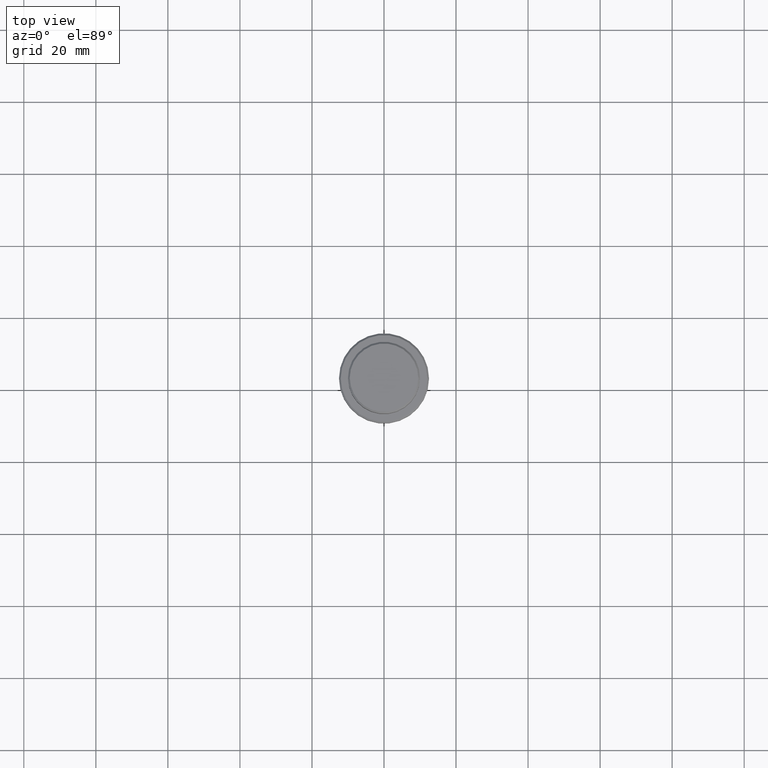
[diagram: clean part render]
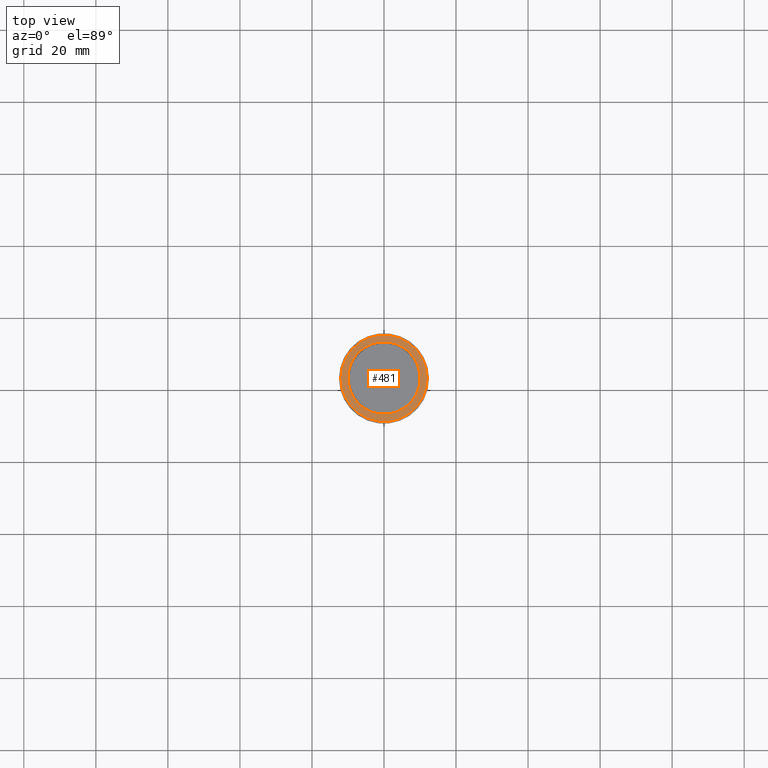
[diagram: same view with one face highlighted and labeled with its STEP entity id]
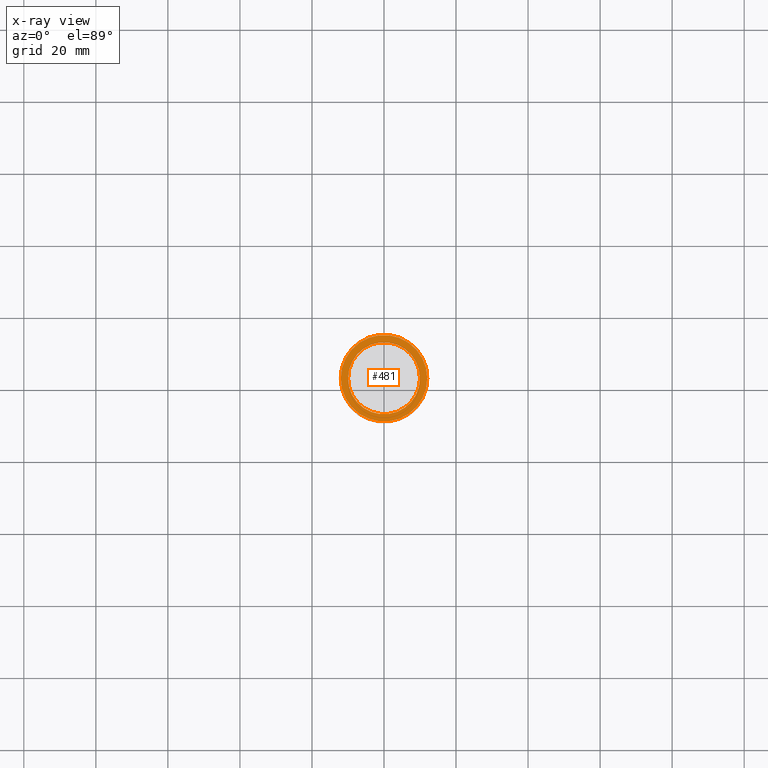
[diagram: x-ray of the same camera — body ghosted, the highlighted face saturated]
A machine part, top view. The second image highlights one B-rep face of the part: STEP entity #481.
The next image is the same camera in x-ray: the body ghosted, the highlighted face saturated — about 0% of this face is hidden behind the body in this view.
In plain terms, the highlighted planar face has unit normal (0, -0, 1).
Its self-contained STEP definition (entity closure, byte-faithful):
#12 = DIRECTION ( 'NONE',  ( 1.000000000000000000, 0.000000000000000000, 0.000000000000000000 ) ) ;
#22 = CARTESIAN_POINT ( 'NONE',  ( 0.000000000000000000, 0.000000000000000000, -9.000000000000000000 ) ) ;
#44 = EDGE_LOOP ( 'NONE', ( #384, #1078 ) ) ;
#76 = EDGE_LOOP ( 'NONE', ( #1085, #772 ) ) ;
#107 = VERTEX_POINT ( 'NONE', #596 ) ;
#148 = DIRECTION ( 'NONE',  ( 1.000000000000000000, 0.000000000000000000, 0.000000000000000000 ) ) ;
#195 = CARTESIAN_POINT ( 'NONE',  ( 0.000000000000000000, 0.000000000000000000, -9.000000000000000000 ) ) ;
#225 = AXIS2_PLACEMENT_3D ( 'NONE', #195, #542, #644 ) ;
#267 = CIRCLE ( 'NONE', #225, 12.00000000000001066 ) ;
#315 = CIRCLE ( 'NONE', #409, 9.999999999999992895 ) ;
#357 = PLANE ( 'NONE',  #595 ) ;
#384 = ORIENTED_EDGE ( 'NONE', *, *, #490, .T. ) ;
#409 = AXIS2_PLACEMENT_3D ( 'NONE', #684, #1243, #929 ) ;
#421 = EDGE_CURVE ( 'NONE', #768, #496, #434, .T. ) ;
#434 = CIRCLE ( 'NONE', #1351, 9.999999999999992895 ) ;
#458 = AXIS2_PLACEMENT_3D ( 'NONE', #1302, #1290, #999 ) ;
#481 = ADVANCED_FACE ( 'NONE', ( #903, #1139 ), #357, .T. ) ;
#490 = EDGE_CURVE ( 'NONE', #496, #768, #315, .T. ) ;
#496 = VERTEX_POINT ( 'NONE', #1026 ) ;
#542 = DIRECTION ( 'NONE',  ( -0.000000000000000000, -0.000000000000000000, 1.000000000000000000 ) ) ;
#552 = CARTESIAN_POINT ( 'NONE',  ( -9.999999999999992895, 1.224646799147352468E-15, -9.000000000000000000 ) ) ;
#595 = AXIS2_PLACEMENT_3D ( 'NONE', #817, #1226, #148 ) ;
#596 = CARTESIAN_POINT ( 'NONE',  ( 12.00000000000001066, 1.500192328955508326E-15, -9.000000000000000000 ) ) ;
#644 = DIRECTION ( 'NONE',  ( 1.000000000000000000, 0.000000000000000000, 0.000000000000000000 ) ) ;
#684 = CARTESIAN_POINT ( 'NONE',  ( 0.000000000000000000, 0.000000000000000000, -9.000000000000000000 ) ) ;
#735 = EDGE_CURVE ( 'NONE', #107, #777, #1158, .T. ) ;
#768 = VERTEX_POINT ( 'NONE', #552 ) ;
#772 = ORIENTED_EDGE ( 'NONE', *, *, #735, .T. ) ;
#776 = DIRECTION ( 'NONE',  ( 0.000000000000000000, 0.000000000000000000, -1.000000000000000000 ) ) ;
#777 = VERTEX_POINT ( 'NONE', #1192 ) ;
#817 = CARTESIAN_POINT ( 'NONE',  ( 0.000000000000000000, 9.499999999999992895, -9.000000000000000000 ) ) ;
#903 = FACE_OUTER_BOUND ( 'NONE', #76, .T. ) ;
#929 = DIRECTION ( 'NONE',  ( 1.000000000000000000, 0.000000000000000000, 0.000000000000000000 ) ) ;
#999 = DIRECTION ( 'NONE',  ( 1.000000000000000000, 0.000000000000000000, 0.000000000000000000 ) ) ;
#1026 = CARTESIAN_POINT ( 'NONE',  ( 9.999999999999992895, 0.000000000000000000, -9.000000000000000000 ) ) ;
#1078 = ORIENTED_EDGE ( 'NONE', *, *, #421, .T. ) ;
#1085 = ORIENTED_EDGE ( 'NONE', *, *, #1311, .T. ) ;
#1139 = FACE_BOUND ( 'NONE', #44, .T. ) ;
#1158 = CIRCLE ( 'NONE', #458, 12.00000000000001066 ) ;
#1192 = CARTESIAN_POINT ( 'NONE',  ( -12.00000000000001066, 0.000000000000000000, -9.000000000000000000 ) ) ;
#1226 = DIRECTION ( 'NONE',  ( 0.000000000000000000, -0.000000000000000000, 1.000000000000000000 ) ) ;
#1243 = DIRECTION ( 'NONE',  ( 0.000000000000000000, 0.000000000000000000, -1.000000000000000000 ) ) ;
#1290 = DIRECTION ( 'NONE',  ( -0.000000000000000000, -0.000000000000000000, 1.000000000000000000 ) ) ;
#1302 = CARTESIAN_POINT ( 'NONE',  ( 0.000000000000000000, 0.000000000000000000, -9.000000000000000000 ) ) ;
#1311 = EDGE_CURVE ( 'NONE', #777, #107, #267, .T. ) ;
#1351 = AXIS2_PLACEMENT_3D ( 'NONE', #22, #776, #12 ) ;